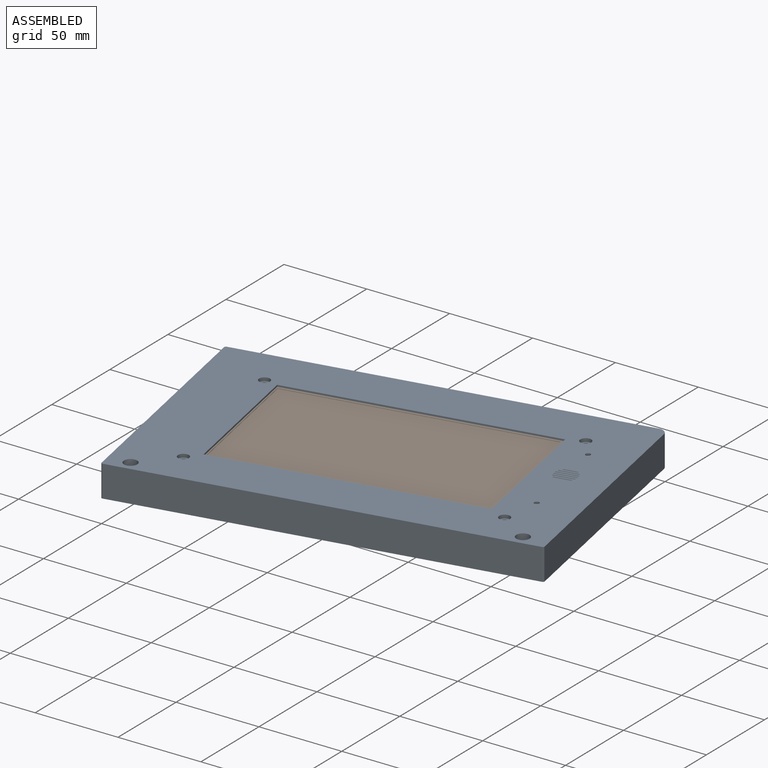
[diagram: assembled view]
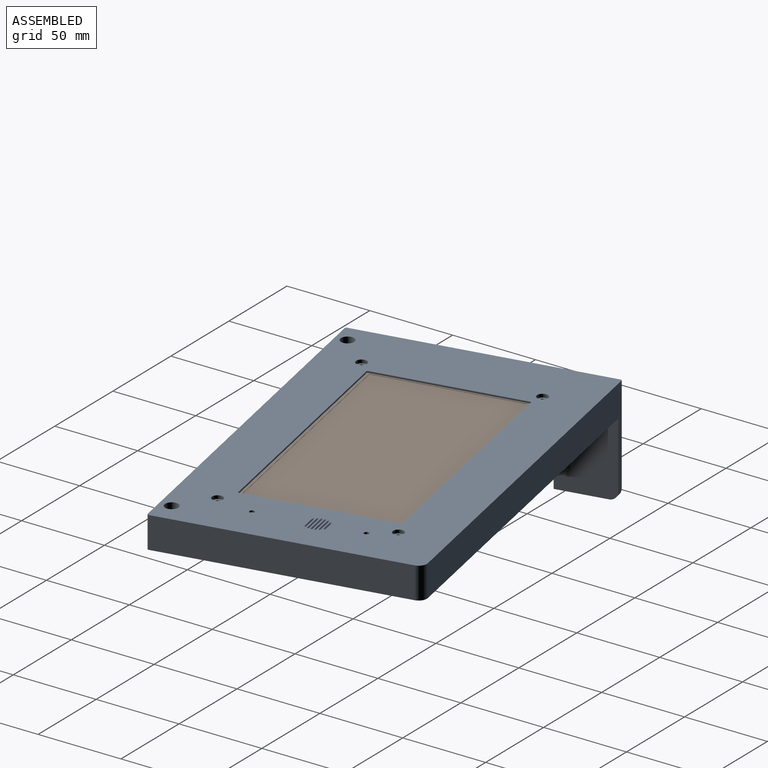
[diagram: assembled view, second angle]
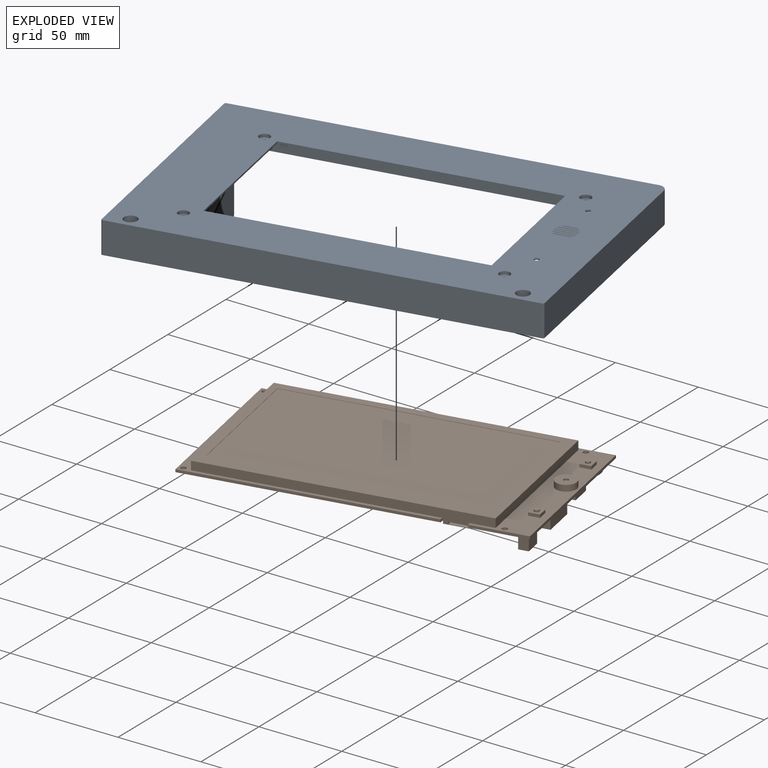
[diagram: exploded view]
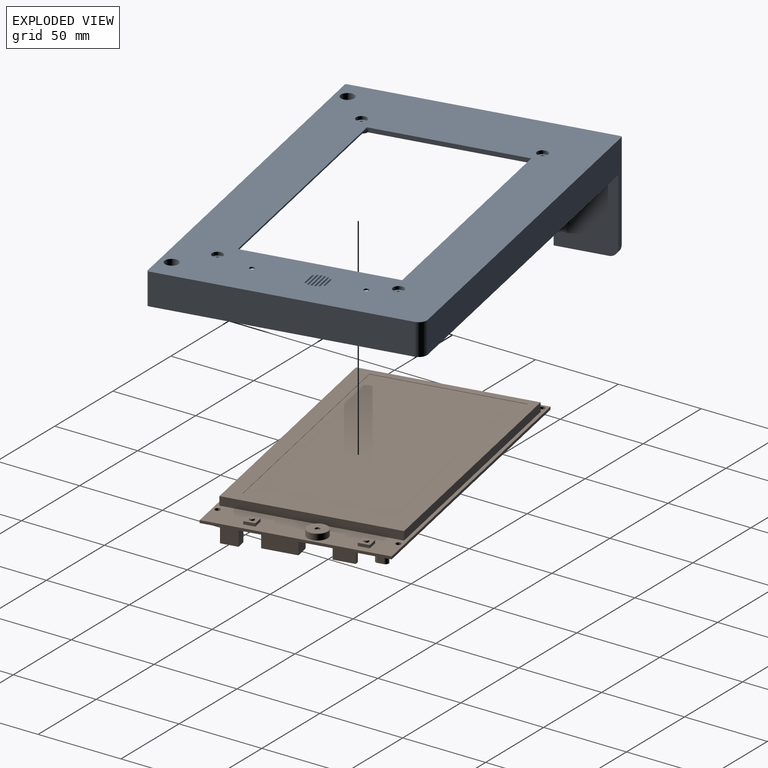
[diagram: exploded view, second angle]
ASSEMBLY  parts=2 mates=3
PART A: 149 faces, bbox 242.3x66.7x152.7 mm
  f0: plane 240x150mm, normal (0,1,0), area 3816.6mm2, adj f7,f31,f32,f33,f36,f101,f102,f103
  f1: plane 27x21mm, normal (0,1,0), area 530.4mm2, adj f2,f7,f102,f119,f122,f125
  f2: torus R=8.94mm, axis (0,-1,0), area 36.3mm2, adj f1,f51,f119,f122
  f3: plane 25x21mm, normal (0,1,0), area 488.4mm2, adj f5,f7,f101,f117,f120,f124
  f4: plane 170x21.5mm, normal (0,1,0), area 3585.7mm2, adj f6,f7,f17,f45,f118,f121
  f5: torus R=8.94mm, axis (0,-1,0), area 36.3mm2, adj f3,f56,f117,f120
  f6: torus R=8.94mm, axis (0,-1,0), area 40.9mm2, adj f4,f45,f46,f56,f121
  f7: plane 220x17mm, normal (0,0,-1), area 3626.4mm2, adj f0,f1,f3,f4,f118,f119,f120,f121
  f8: plane 111.31x21.06mm, normal (0,1,0), area 2233.6mm2, adj f9,f16,f97,f102,f103,f114,f123,f130
  f9: torus R=8.94mm, axis (0,-1,0), area 5.2mm2, adj f8,f98,f123
  f10: plane 113.94x31mm, normal (0,1,0), area 2581.5mm2, adj f11,f14,f19,f38,f39,f40,f41,f42
  f11: torus R=8.94mm, axis (0,-1,0), area 90.5mm2, adj f10,f46,f56,f116
  f12: torus R=8.94mm, axis (0,-1,0), area 81.5mm2, adj f13,f44,f49,f51,f115
  f13: plane 200.12x17.5mm, normal (0,1,0), area 3169mm2, adj f12,f49,f65,f104,f105,f112,f115,f126
  f14: torus R=8.94mm, axis (0,-1,0), area 122.5mm2, adj f10,f46,f54,f113
  f15: plane 82.02x3mm, normal (0,1,0), area 242.8mm2, adj f44,f66,f67,f92
  f16: torus R=8.94mm, axis (0,-1,0), area 29.5mm2, adj f8,f51,f96,f114
  f17: torus R=8.94mm, axis (0,-1,0), area 40.9mm2, adj f4,f44,f45,f51,f118
  f18: plane 240x150mm, normal (0,-1,0), area 21794.3mm2, adj f28,f29,f30,f31,f32,f33,f34,f35
  f19: cylinder r=6.5mm len=13mm, axis (0,-1,0), area 39.5mm2, adj f10,f20,f21,f22,f23,f24,f69,f70
  f20: plane 6.13x0.77mm, normal (0,1,0), area 3.2mm2, adj f19,f88
  f21: plane 10.64x1.54mm, normal (0,1,0), area 14.3mm2, adj f19,f84,f89
  f22: plane 13x6.16mm, normal (0,1,0), area 58.1mm2, adj f19,f72,f73,f75,f76,f77,f78,f79
  f23: plane 11.8x1.59mm, normal (0,1,0), area 16.7mm2, adj f19,f68,f69,f71,f74
  f24: plane 8.91x1.77mm, normal (0,1,0), area 10.8mm2, adj f19,f70
  f25: plane 166x101mm, normal (0,1,0), area 2882mm2, adj f28,f29,f30,f35,f44,f45,f46,f49
  f26: plane 7.5x7.5mm, normal (0,1,0), area 49.2mm2, adj f34,f41,f42,f43,f48
  f27: plane 7.5x7.5mm, normal (0,1,0), area 49.2mm2, adj f37,f38,f39,f40,f47
  f28: plane 89x1mm, normal (1,0,0), area 89mm2, adj f18,f25,f29,f35
  f29: plane 156x1mm, normal (0,0,-1), area 156mm2, adj f18,f25,f28,f30
  f30: plane 89x1mm, normal (-1,0,0), area 89mm2, adj f18,f25,f29,f35
  f31: plane 144x19mm, normal (1,0,0), area 2736mm2, adj f0,f18,f129,f148
  f32: plane 234x59mm, normal (0,0,1), area 4606mm2, adj f0,f18,f102,f129,f143,f144
  f33: plane 148x63mm, normal (-1,0,0), area 4304.6mm2, adj f0,f18,f132,f144,f145,f146,f147
  f34: cylinder r=1.5mm len=3mm, axis (0,1,0), area 9.4mm2, adj f18,f26
  f35: plane 156x1mm, normal (0,0,1), area 156mm2, adj f18,f25,f28,f30
  f36: plane 238x19mm, normal (0,0,-1), area 4522mm2, adj f0,f18,f147,f148
  f37: cylinder r=1.5mm len=3mm, axis (0,1,0), area 9.4mm2, adj f18,f27
  f38: plane 7.5x1mm, normal (0,0,-1), area 7.5mm2, adj f10,f27,f39,f47
  f39: plane 7.5x1mm, normal (-1,0,0), area 7.5mm2, adj f10,f27,f38,f40
  f40: plane 7.5x1mm, normal (0,0,1), area 7.5mm2, adj f10,f27,f39,f47
  f41: plane 7.5x1mm, normal (0,0,-1), area 7.5mm2, adj f10,f26,f42,f48
  f42: plane 7.5x1mm, normal (-1,0,0), area 7.5mm2, adj f10,f26,f41,f43
  f43: plane 7.5x1mm, normal (0,0,1), area 7.5mm2, adj f10,f26,f42,f48
  f44: plane 103.25x7.46mm, normal (1,0,0), area 137.8mm2, adj f12,f15,f17,f25,f45,f49,f66,f67
  f45: plane 166.22x4.42mm, normal (0,0,-1), area 174.5mm2, adj f4,f6,f17,f25,f44,f46
  f46: plane 103.25x7.46mm, normal (-1,0,0), area 137.8mm2, adj f6,f10,f11,f14,f25,f45,f49,f65
  f47: plane 7.5x1mm, normal (1,0,0), area 7.5mm2, adj f10,f27,f38,f40
  f48: plane 7.5x1mm, normal (1,0,0), area 7.5mm2, adj f10,f26,f41,f43
  f49: plane 166.22x4.42mm, normal (0,0,1), area 174.6mm2, adj f12,f13,f25,f44,f46,f65
  f50: cylinder r=1.65mm len=4.2mm, axis (0,-1,0), area 43.5mm2, adj f51,f61
  f51: plane 119.36x13.47mm, normal (0,1,0), area 518.1mm2, adj f2,f12,f16,f17,f50,f52,f66,f67
  f52: cylinder r=1.65mm len=4.2mm, axis (0,-1,0), area 43.5mm2, adj f51,f63
  f53: cylinder r=1.65mm len=4.2mm, axis (0,-1,0), area 43.5mm2, adj f54,f57
  f54: plane 11.15x11.01mm, normal (0,1,0), area 58.2mm2, adj f14,f53,f65,f112,f113,f142
  f55: cylinder r=1.65mm len=4.2mm, axis (0,-1,0), area 43.5mm2, adj f56,f59
  f56: plane 21x17mm, normal (0,1,0), area 131.1mm2, adj f5,f6,f11,f55,f116,f117,f120,f121
  f57: plane 6.5x6.5mm, normal (0,-1,0), area 24.6mm2, adj f53,f58
  f58: cylinder r=3.25mm len=6.5mm, axis (0,-1,0), area 40.8mm2, adj f18,f57
  f59: plane 6.5x6.5mm, normal (0,-1,0), area 24.6mm2, adj f55,f60
  f60: cylinder r=3.25mm len=6.5mm, axis (0,-1,0), area 40.8mm2, adj f18,f59
  f61: plane 6.5x6.5mm, normal (0,-1,0), area 24.6mm2, adj f50,f62
  f62: cylinder r=3.25mm len=6.5mm, axis (0,-1,0), area 40.8mm2, adj f18,f61
  f63: plane 6.5x6.5mm, normal (0,-1,0), area 24.6mm2, adj f52,f64
  f64: cylinder r=3.25mm len=6.5mm, axis (0,-1,0), area 40.8mm2, adj f18,f63
  f65: torus R=8.94mm, axis (0,-1,0), area 74.9mm2, adj f13,f46,f49,f54,f112
  f66: torus R=8.94mm, axis (0,-1,0), area 32.2mm2, adj f15,f44,f51,f92
  f67: torus R=8.94mm, axis (0,-1,0), area 32.2mm2, adj f15,f44,f51,f92
  f68: plane 10.25x1mm, normal (0,-0.26,-0.97), area 10.3mm2, adj f18,f23,f69,f71
  f69: plane 1.75x1.01mm, normal (0.97,-0.26,0), area 0.9mm2, adj f18,f19,f23,f68,f70
  f70: plane 10.26x1.75mm, normal (0,-0.26,0.97), area 10.6mm2, adj f18,f19,f24,f69,f71
  f71: plane 1.75x1.01mm, normal (-0.97,-0.26,0), area 0.9mm2, adj f18,f19,f23,f68,f70
  f72: plane 12.37x1mm, normal (0,-0.26,-0.97), area 12.5mm2, adj f18,f22,f73,f75
  f73: plane 1.05x1mm, normal (0.97,-0.26,0), area 0.8mm2, adj f18,f19,f22,f72,f74
  f74: plane 12.37x1.05mm, normal (0,-0.26,0.97), area 12.5mm2, adj f18,f19,f23,f73,f75
  f75: plane 1.05x1mm, normal (-0.97,-0.26,0), area 0.8mm2, adj f18,f19,f22,f72,f74
  f76: plane 13x1mm, normal (0,-0.26,-0.97), area 13.2mm2, adj f18,f22,f77,f79
  f77: plane 1x1mm, normal (0.97,-0.26,0), area 0.8mm2, adj f18,f22,f76,f78
  f78: plane 13x1mm, normal (0,-0.26,0.97), area 13.2mm2, adj f18,f22,f77,f79
  f79: plane 1x1mm, normal (-0.97,-0.26,0), area 0.8mm2, adj f18,f22,f76,f78
  f80: plane 12.85x1mm, normal (0,-0.26,-0.97), area 13mm2, adj f18,f22,f81,f83
  f81: plane 1x1mm, normal (0.97,-0.26,0), area 0.8mm2, adj f18,f22,f80,f82
  f82: plane 12.85x1mm, normal (0,-0.26,0.97), area 13mm2, adj f18,f22,f81,f83
  f83: plane 1x1mm, normal (-0.97,-0.26,0), area 0.8mm2, adj f18,f22,f80,f82
  f84: plane 11.53x1.39mm, normal (0,-0.26,-0.97), area 11.7mm2, adj f18,f19,f21,f85,f87
  f85: plane 1.39x1mm, normal (0.97,-0.26,0), area 0.8mm2, adj f18,f19,f22,f84,f86
  f86: plane 11.53x1mm, normal (0,-0.26,0.97), area 11.7mm2, adj f18,f22,f85,f87
  f87: plane 1.39x1mm, normal (-0.97,-0.26,0), area 0.8mm2, adj f18,f19,f22,f84,f86
  f88: plane 8.33x1.89mm, normal (0,-0.26,-0.97), area 9.2mm2, adj f18,f19,f20,f89,f90,f91
  f89: plane 8.33x1.89mm, normal (0,-0.26,0.97), area 8.6mm2, adj f18,f19,f21,f88,f90,f91
  f90: plane 1.87x1mm, normal (0.97,-0.26,0), area 1mm2, adj f18,f88,f89
  f91: plane 1.87x1mm, normal (-0.97,-0.26,0), area 1mm2, adj f18,f88,f89
  f92: plane 90.38x4.32mm, normal (1,0,0), area 368.7mm2, adj f15,f51,f66,f67
  f93: plane 12.87x4.2mm, normal (0,0,1), area 22.8mm2, adj f10,f95,f99,f100
  f94: plane 12.87x4.2mm, normal (0,0,-1), area 22.8mm2, adj f10,f95,f99,f100
  f95: plane 15x3mm, normal (0,1,0), area 45mm2, adj f93,f94,f99,f100
  f96: sphere r=5mm, area 10mm2, adj f16,f51,f97
  f97: cylinder r=5mm len=89.79mm, axis (0,0,-1), area 633mm2, adj f8,f51,f96,f98
  f98: sphere r=5mm, area 10mm2, adj f9,f51,f97,f123
  f99: cylinder r=5mm len=15mm, axis (0,0,-1), area 105.8mm2, adj f10,f93,f94,f95
  f100: cylinder r=5mm len=15mm, axis (0,0,-1), area 105.8mm2, adj f10,f93,f94,f95
  f101: plane 130.29x17mm, normal (-1,0,0), area 2158.2mm2, adj f0,f3,f10,f116,f117,f124,f128,f140
  f102: plane 140.31x62mm, normal (1,0,0), area 3583.8mm2, adj f0,f1,f8,f32,f122,f123,f125,f130
  f103: cylinder r=6.5mm len=17mm, axis (0,-1,0), area 226.7mm2, adj f0,f8,f114,f126,f130,f137
  f104: plane 190.3x17mm, normal (0,0,1), area 3235mm2, adj f0,f13,f126,f127
  f105: cylinder r=6.5mm len=17mm, axis (0,-1,0), area 259.3mm2, adj f0,f10,f13,f112,f113,f127,f131,f142
  f106: cylinder r=1.65mm len=15mm, axis (0,-1,0), area 155.5mm2, adj f0,f107
  f107: plane 8x8mm, normal (0,-1,0), area 41.7mm2, adj f106,f108
  f108: cylinder r=4mm len=8mm, axis (0,-1,0), area 100.5mm2, adj f18,f107
  f109: cylinder r=1.65mm len=15mm, axis (0,-1,0), area 155.5mm2, adj f0,f110
  f110: plane 8x8mm, normal (0,-1,0), area 41.7mm2, adj f109,f111
  f111: cylinder r=4mm len=8mm, axis (0,-1,0), area 100.5mm2, adj f18,f110
  f112: plane 14.52x10.75mm, normal (-0.71,0,-0.71), area 78.8mm2, adj f13,f54,f65,f105,f142
  f113: plane 14.51x10.74mm, normal (0.71,0,0.71), area 78.3mm2, adj f10,f14,f54,f105,f142
  f114: plane 14.8x13.14mm, normal (-0.71,0,0.71), area 89.4mm2, adj f8,f16,f51,f103,f137
  f115: plane 14.81x13.08mm, normal (0.71,0,-0.71), area 92.6mm2, adj f12,f13,f51,f126,f137,f138
  f116: plane 23.82x14.48mm, normal (0,0,-1), area 114.7mm2, adj f10,f11,f56,f101,f140
  f117: plane 23.82x14.49mm, normal (0,0,1), area 114.7mm2, adj f3,f5,f56,f101,f140
  f118: plane 19.82x14.49mm, normal (1,0,0), area 97.9mm2, adj f4,f7,f17,f51,f141
  f119: plane 19.82x14.48mm, normal (-1,0,0), area 97.9mm2, adj f1,f2,f7,f51,f141
  f120: plane 19.82x14.48mm, normal (1,0,0), area 97.9mm2, adj f3,f5,f7,f56,f139
  f121: plane 19.82x14.49mm, normal (-1,0,0), area 97.9mm2, adj f4,f6,f7,f56,f139
  f122: plane 50.54x25.82mm, normal (0,0,1), area 553.6mm2, adj f1,f2,f51,f102,f134,f135,f136
  f123: plane 50.57x25.84mm, normal (0,0,-1), area 553.6mm2, adj f8,f9,f51,f98,f102,f134,f135,f136
  f124: cylinder r=5mm len=17mm, axis (0,-1,0), area 133.5mm2, adj f0,f3,f7,f101
  f125: cylinder r=5mm len=17mm, axis (0,1,0), area 133.5mm2, adj f0,f1,f7,f102
  f126: cylinder r=5mm len=17mm, axis (0,-1,0), area 101.9mm2, adj f0,f13,f103,f104,f115,f138
  f127: cylinder r=5mm len=17mm, axis (0,-1,0), area 111.1mm2, adj f0,f13,f104,f105
  f128: cylinder r=5mm len=17mm, axis (0,-1,0), area 61.4mm2, adj f0,f10,f101,f131
  f129: cylinder r=5mm len=19mm, axis (0,-1,0), area 149.2mm2, adj f0,f18,f31,f32
  f130: cylinder r=1mm len=17mm, axis (0,-1,0), area 47.2mm2, adj f0,f8,f102,f103
  f131: cylinder r=1mm len=17mm, axis (0,-1,0), area 41mm2, adj f0,f10,f105,f128
  f132: plane 45x5mm, normal (0,0,-1), area 224.8mm2, adj f0,f33,f102,f133,f146
  f133: plane 30x4mm, normal (0,1,0), area 120mm2, adj f102,f132,f143,f146
  f134: plane 41.06x18.25mm, normal (0.91,0.41,0), area 179.7mm2, adj f122,f123,f135,f136
  f135: cylinder r=5mm len=4.57mm, axis (0,0,1), area 23.1mm2, adj f51,f122,f123,f134
  f136: cylinder r=5mm len=4mm, axis (0,0,1), area 8.4mm2, adj f102,f122,f123,f134
  f137: torus R=16.5mm, axis (0,1,0), area 63.2mm2, adj f51,f103,f114,f115,f138
  f138: bspline ~8.73x5.82mm, area 2.1mm2, adj f115,f126,f137
  f139: cylinder r=10mm len=10mm, axis (1,0,0), area 62.8mm2, adj f7,f56,f120,f121
  f140: cylinder r=10mm len=10mm, axis (0,0,1), area 62.8mm2, adj f56,f101,f116,f117
  f141: cylinder r=10mm len=10mm, axis (-1,0,0), area 62.8mm2, adj f7,f51,f118,f119
  f142: torus R=16.5mm, axis (0,1,0), area 63.9mm2, adj f54,f105,f112,f113
  f143: cylinder r=5mm len=5mm, axis (1,0,0), area 31.4mm2, adj f32,f102,f133,f145
  f144: cylinder r=1mm len=59mm, axis (0,1,0), area 92.7mm2, adj f18,f32,f33,f145
  f145: torus R=4mm, axis (1,0,0), area 11.4mm2, adj f33,f143,f144,f146
  f146: cylinder r=1mm len=30mm, axis (0,0,1), area 47.1mm2, adj f33,f132,f133,f145
  f147: cylinder r=1mm len=19mm, axis (0,-1,0), area 29.8mm2, adj f0,f18,f33,f36
  f148: cylinder r=1mm len=19mm, axis (0,1,0), area 29.8mm2, adj f0,f18,f31,f36
PART B: 73 faces, bbox 192x104x18.1 mm
  f0: cylinder r=1mm len=5.7mm, axis (0,0,-1), area 9mm2, adj f1,f2,f6,f72
  f1: plane 5.7x5.5mm, normal (-1,0,0), area 31.3mm2, adj f0,f2,f3,f72
  f2: plane 7.5x3mm, normal (0,0,-1), area 20.4mm2, adj f0,f1,f3,f4,f5,f6
  f3: cylinder r=1mm len=5.7mm, axis (0,0,-1), area 9mm2, adj f1,f2,f4,f72
  f4: cylinder r=2mm len=5.7mm, axis (0,0,-1), area 17.9mm2, adj f2,f3,f5,f72
  f5: plane 5.7x3.5mm, normal (1,0,0), area 19.9mm2, adj f2,f4,f6,f72
  f6: cylinder r=2mm len=5.7mm, axis (0,0,-1), area 17.9mm2, adj f0,f2,f5,f72
  f7: plane 11.9x10mm, normal (0,0,1), area 119mm2, adj f8,f10,f11,f23
  f8: plane 10x1.3mm, normal (-1,0,0), area 13mm2, adj f7,f9,f11,f23
  f9: plane 11.9x10mm, normal (0,0,-1), area 119mm2, adj f8,f10,f11,f23
  f10: plane 10x1.3mm, normal (1,0,0), area 13mm2, adj f7,f9,f11,f23
  f11: plane 11.9x1.3mm, normal (0,-1,0), area 15.5mm2, adj f7,f8,f9,f10
  f12: plane 9x8.8mm, normal (0,1,0), area 79.2mm2, adj f13,f15,f16,f72
  f13: plane 20.2x9mm, normal (-1,0,0), area 181.8mm2, adj f12,f14,f16,f72
  f14: plane 9x8.8mm, normal (0,-1,0), area 79.2mm2, adj f13,f15,f16,f72
  f15: plane 20.2x9mm, normal (1,0,0), area 181.8mm2, adj f12,f14,f16,f72
  f16: plane 20.2x8.8mm, normal (0,0,-1), area 177.8mm2, adj f12,f13,f14,f15
  f17: plane 11.3x5.8mm, normal (0,1,0), area 65.5mm2, adj f18,f20,f21,f72
  f18: plane 11.3x10mm, normal (-1,0,0), area 113mm2, adj f17,f19,f21,f72
  f19: plane 11.3x5.8mm, normal (0,-1,0), area 65.5mm2, adj f18,f20,f21,f72
  f20: plane 11.3x10mm, normal (1,0,0), area 113mm2, adj f17,f19,f21,f72
  f21: plane 10x5.8mm, normal (0,0,-1), area 58mm2, adj f17,f18,f19,f20
  f22: plane 15x2mm, normal (-1,0,0), area 30mm2, adj f23,f25,f26,f72
  f23: plane 14.9x2mm, normal (0,-1,0), area 14.3mm2, adj f7,f8,f9,f10,f22,f24,f26,f72
  f24: plane 15x2mm, normal (1,0,0), area 30mm2, adj f23,f25,f26,f72
  f25: plane 14.9x2mm, normal (0,1,0), area 29.8mm2, adj f22,f24,f26,f72
  f26: plane 15x14.9mm, normal (0,0,-1), area 223.5mm2, adj f22,f23,f24,f25
  f27: plane 2x1.6mm, normal (1,0,0), area 3.2mm2, adj f46,f67,f71,f72
  f28: plane 2x1.6mm, normal (-1,0,0), area 3.2mm2, adj f29,f46,f71,f72
  f29: plane 33.5x1.6mm, normal (0,-1,0), area 53.6mm2, adj f28,f70,f71,f72
  f30: plane 12.5x9.4mm, normal (-1,0,0), area 117.5mm2, adj f31,f33,f34,f72
  f31: plane 9.4x2.54mm, normal (0,-1,0), area 23.9mm2, adj f30,f32,f34,f72
  f32: plane 12.5x9.4mm, normal (1,0,0), area 117.5mm2, adj f31,f33,f34,f72
  f33: plane 9.4x2.54mm, normal (0,1,0), area 23.9mm2, adj f30,f32,f34,f72
  f34: plane 12.5x2.54mm, normal (0,0,-1), area 31.8mm2, adj f30,f31,f32,f33
  f35: cylinder r=1.5mm len=3mm, axis (0,0,-1), area 9.4mm2, adj f36,f52
  f36: plane 3x3mm, normal (0,0,1), area 7.1mm2, adj f35
  f37: cylinder r=1.5mm len=3mm, axis (0,0,1), area 9.4mm2, adj f38,f62
  f38: plane 3x3mm, normal (0,0,1), area 7.1mm2, adj f37
  f39: cylinder r=1.5mm len=3mm, axis (0,0,1), area 9.4mm2, adj f40,f57
  f40: plane 3x3mm, normal (0,0,1), area 7.1mm2, adj f39
  f41: plane 85.6x0.2mm, normal (-1,0,0), area 17.1mm2, adj f42,f44,f45,f50
  f42: plane 153.1x0.2mm, normal (0,-1,0), area 30.6mm2, adj f41,f43,f45,f50
  f43: plane 85.6x0.2mm, normal (1,0,0), area 17.1mm2, adj f42,f44,f45,f50
  f44: plane 153.1x0.2mm, normal (0,1,0), area 30.6mm2, adj f41,f43,f45,f50
  f45: plane 153.1x85.6mm, normal (0,0,1), area 13105.4mm2, adj f41,f42,f43,f44
  f46: plane 165x6.8mm, normal (0,-1,0), area 881.8mm2, adj f27,f28,f47,f49,f50,f71,f72
  f47: plane 100x5.2mm, normal (-1,0,0), area 520mm2, adj f46,f48,f50,f71
  f48: plane 165x5.2mm, normal (0,1,0), area 858mm2, adj f47,f49,f50,f71
  f49: plane 100x5.2mm, normal (1,0,0), area 520mm2, adj f46,f48,f50,f71
  f50: plane 165x100mm, normal (0,0,1), area 3394.6mm2, adj f41,f42,f43,f44,f46,f47,f48,f49
  f51: cylinder r=6.05mm len=12.1mm, axis (0,0,1), area 140.6mm2, adj f52,f71
  f52: plane 12.1x12.1mm, normal (0,0,1), area 107.9mm2, adj f35,f51
  f53: plane 6.5x1.8mm, normal (1,0,0), area 11.7mm2, adj f54,f56,f57,f71
  f54: plane 6.5x1.8mm, normal (0,-1,0), area 11.7mm2, adj f53,f55,f57,f71
  f55: plane 6.5x1.8mm, normal (-1,0,0), area 11.7mm2, adj f54,f56,f57,f71
  f56: plane 6.5x1.8mm, normal (0,1,0), area 11.7mm2, adj f53,f55,f57,f71
  f57: plane 6.5x6.5mm, normal (0,0,1), area 35.2mm2, adj f39,f53,f54,f55,f56
  f58: plane 6.5x1.8mm, normal (1,0,0), area 11.7mm2, adj f59,f61,f62,f71
  f59: plane 6.5x1.8mm, normal (0,-1,0), area 11.7mm2, adj f58,f60,f62,f71
  f60: plane 6.5x1.8mm, normal (-1,0,0), area 11.7mm2, adj f59,f61,f62,f71
  f61: plane 6.5x1.8mm, normal (0,1,0), area 11.7mm2, adj f58,f60,f62,f71
  f62: plane 6.5x6.5mm, normal (0,0,1), area 35.2mm2, adj f37,f58,f59,f60,f61
  f63: cylinder r=1.6mm len=3.2mm, axis (0,0,1), area 16.1mm2, adj f71,f72
  f64: cylinder r=1.6mm len=3.2mm, axis (0,0,1), area 16.1mm2, adj f71,f72
  f65: cylinder r=1.6mm len=3.2mm, axis (0,0,1), area 16.1mm2, adj f71,f72
  f66: cylinder r=1.6mm len=3.2mm, axis (0,0,1), area 16.1mm2, adj f71,f72
  f67: plane 143.6x1.6mm, normal (0,-1,0), area 229.8mm2, adj f27,f68,f71,f72
  f68: plane 104x1.6mm, normal (-1,0,0), area 166.4mm2, adj f67,f69,f71,f72
  f69: plane 192x1.6mm, normal (0,1,0), area 307.2mm2, adj f68,f70,f71,f72
  f70: plane 104x1.6mm, normal (1,0,0), area 166.4mm2, adj f29,f69,f71,f72
  f71: plane 192x104mm, normal (0,0,1), area 3206.5mm2, adj f27,f28,f29,f46,f47,f48,f49,f51
  f72: plane 192x104mm, normal (0,0,-1), area 19394.7mm2, adj f0,f1,f3,f4,f5,f6,f12,f13
PLACE A rot(axis=(-0.99,-0.09,0.09),90.5deg) t=(-52.09,32.56,6.8)mm
PLACE B rot(axis=(0,0,1),10.9deg) t=(-44.84,31.91,0)mm
MATE cylindrical A.f5 <-> B.f66  axis (0,0,1) through (25.48,95.29,1.6)mm
MATE planar A.f54 <-> B.f71  axis (0,0,-1) through (45.33,-1.86,1.6)mm
MATE cylindrical A.f37 <-> B.f37  axis (0,0,-1) through (47.16,22.06,7.3)mm
